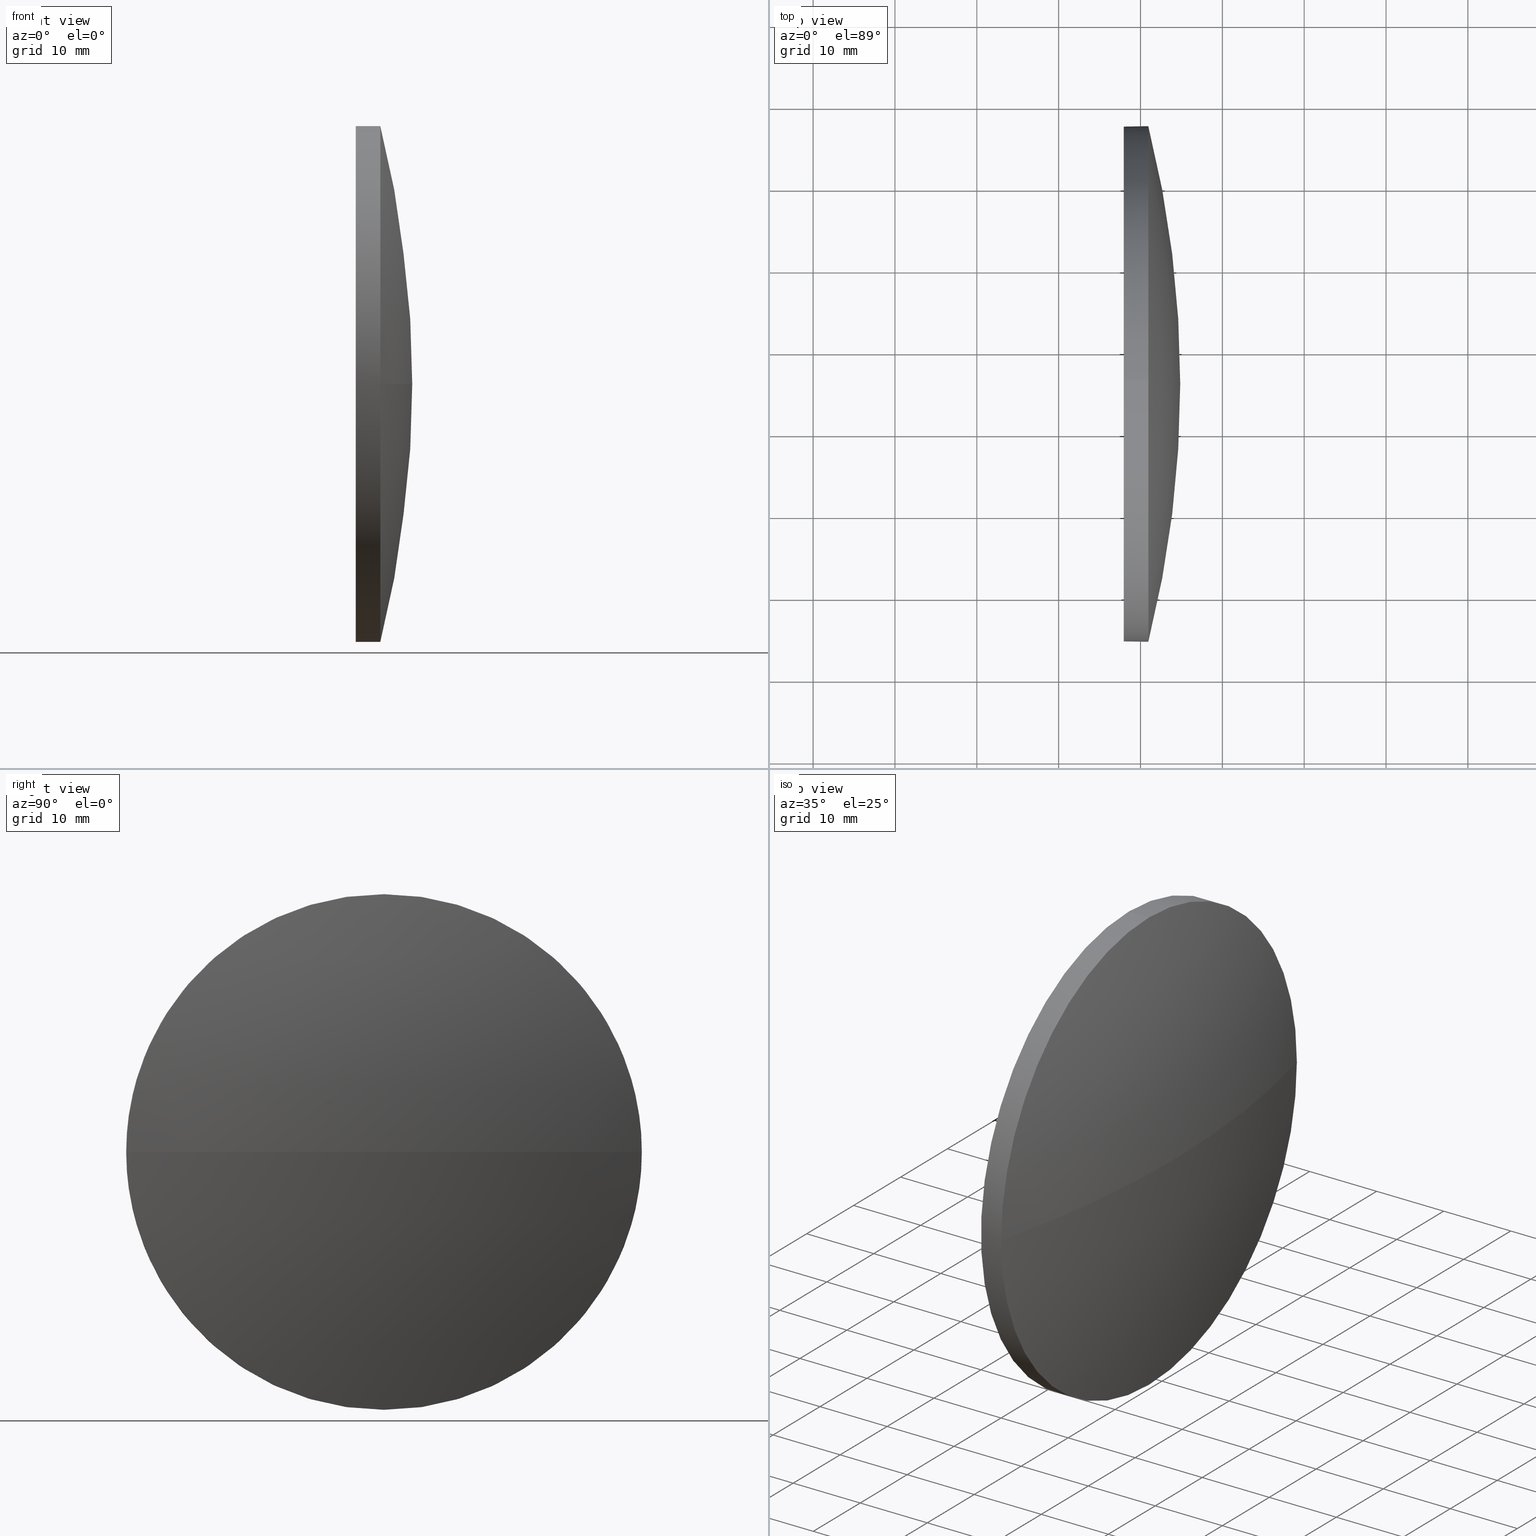
[diagram: canonical four-view strip — front | top / right | iso, engineering-drawing reading convention]
A machine part, canonical four-view strip (front | top / right | iso — engineering-drawing reading convention). The complete STEP part file that produces these views, byte-faithful:
ISO-10303-21;
HEADER;
FILE_DESCRIPTION (( 'STEP AP214' ),
    '1' );
FILE_NAME ('100161.STEP',
    '2019-05-16T08:38:45',
    ( '' ),
    ( '' ),
    'SwSTEP 2.0',
    'SolidWorks 2016',
    '' );
FILE_SCHEMA (( 'AUTOMOTIVE_DESIGN' ));
ENDSEC;

DATA;
#1 = PRODUCT_RELATED_PRODUCT_CATEGORY ( 'part', '', ( #149 ) ) ;
#2 = CIRCLE ( 'NONE', #133, 31.50000000000000000 ) ;
#3 = EDGE_LOOP ( 'NONE', ( #139, #184, #10, #58 ) ) ;
#4 = CARTESIAN_POINT ( 'NONE',  ( 519.9833742792245600, -64.13054328457161500, 31.50000000000000000 ) ) ;
#5 = EDGE_CURVE ( 'NONE', #148, #172, #102, .T. ) ;
#6 = CARTESIAN_POINT ( 'NONE',  ( 530.9541059465552700, -95.63054328457163000, -3.857637417314161900E-015 ) ) ;
#7 =( NAMED_UNIT ( * ) PLANE_ANGLE_UNIT ( ) SI_UNIT ( $, .RADIAN. ) );
#8 =( LENGTH_UNIT ( ) NAMED_UNIT ( * ) SI_UNIT ( .MILLI., .METRE. ) );
#9 = ORIENTED_EDGE ( 'NONE', *, *, #150, .T. ) ;
#10 = ORIENTED_EDGE ( 'NONE', *, *, #101, .F. ) ;
#11 = AXIS2_PLACEMENT_3D ( 'NONE', #167, #17, #153 ) ;
#12 = FACE_OUTER_BOUND ( 'NONE', #52, .T. ) ;
#13 = PRODUCT_CONTEXT ( 'NONE', #20, 'mechanical' ) ;
#14 = CIRCLE ( 'NONE', #36, 31.50000000000000000 ) ;
#15 = DIRECTION ( 'NONE',  ( -0.0000000000000000000, 0.0000000000000000000, -1.000000000000000000 ) ) ;
#16 = DIRECTION ( 'NONE',  ( -1.000000000000000000, -0.0000000000000000000, -0.0000000000000000000 ) ) ;
#17 = DIRECTION ( 'NONE',  ( -1.000000000000000000, -0.0000000000000000000, -0.0000000000000000000 ) ) ;
#18 = CARTESIAN_POINT ( 'NONE',  ( 534.8541059465552500, -64.13054328457161500, 0.0000000000000000000 ) ) ;
#19 = CARTESIAN_POINT ( 'NONE',  ( 405.6925674850170400, -64.13054328457163000, 0.0000000000000000000 ) ) ;
#20 = APPLICATION_CONTEXT ( 'automotive_design' ) ;
#21 = CARTESIAN_POINT ( 'NONE',  ( 0.0000000000000000000, 0.0000000000000000000, 0.0000000000000000000 ) ) ;
#22 = VERTEX_POINT ( 'NONE', #73 ) ;
#23 = ADVANCED_FACE ( 'NONE', ( #12 ), #174, .T. ) ;
#24 = PRESENTATION_LAYER_ASSIGNMENT (  '', '', ( #163 ) ) ;
#25 = VERTEX_POINT ( 'NONE', #60 ) ;
#26 = UNCERTAINTY_MEASURE_WITH_UNIT (LENGTH_MEASURE( 1.000000000000000100E-005 ), #169, 'distance_accuracy_value', 'NONE');
#27 = CARTESIAN_POINT ( 'NONE',  ( 530.9541059465552700, -64.13054328457161500, 0.0000000000000000000 ) ) ;
#28 = ORIENTED_EDGE ( 'NONE', *, *, #101, .T. ) ;
#29 =( NAMED_UNIT ( * ) PLANE_ANGLE_UNIT ( ) SI_UNIT ( $, .RADIAN. ) );
#30 = MECHANICAL_DESIGN_GEOMETRIC_PRESENTATION_REPRESENTATION (  '', ( #163 ), #129 ) ;
#31 = CARTESIAN_POINT ( 'NONE',  ( 530.9541059465552700, -64.13054328457161500, 0.0000000000000000000 ) ) ;
#32 = CIRCLE ( 'NONE', #41, 31.50000000000000000 ) ;
#33 =( NAMED_UNIT ( * ) PLANE_ANGLE_UNIT ( ) SI_UNIT ( $, .RADIAN. ) );
#34 = ORIENTED_EDGE ( 'NONE', *, *, #120, .T. ) ;
#35 = FACE_OUTER_BOUND ( 'NONE', #3, .T. ) ;
#36 = AXIS2_PLACEMENT_3D ( 'NONE', #27, #111, #76 ) ;
#37 = ADVANCED_FACE ( 'NONE', ( #98 ), #117, .T. ) ;
#38 = MECHANICAL_DESIGN_GEOMETRIC_PRESENTATION_REPRESENTATION (  '', ( #171 ), #178 ) ;
#39 = FACE_OUTER_BOUND ( 'NONE', #56, .T. ) ;
#40 = ORIENTED_EDGE ( 'NONE', *, *, #5, .T. ) ;
#41 = AXIS2_PLACEMENT_3D ( 'NONE', #110, #157, #158 ) ;
#42 = LINE ( 'NONE', #181, #105 ) ;
#43 = UNCERTAINTY_MEASURE_WITH_UNIT (LENGTH_MEASURE( 1.000000000000000100E-005 ), #127, 'distance_accuracy_value', 'NONE');
#44 = CARTESIAN_POINT ( 'NONE',  ( 530.9541059465552700, -64.13054328457161500, -31.50000000000000000 ) ) ;
#45 = ORIENTED_EDGE ( 'NONE', *, *, #72, .F. ) ;
#46 =( GEOMETRIC_REPRESENTATION_CONTEXT ( 3 ) GLOBAL_UNCERTAINTY_ASSIGNED_CONTEXT ( ( #26 ) ) GLOBAL_UNIT_ASSIGNED_CONTEXT ( ( #169, #7, #79 ) ) REPRESENTATION_CONTEXT ( 'NONE', 'WORKASPACE' ) );
#47 =( NAMED_UNIT ( * ) SI_UNIT ( $, .STERADIAN. ) SOLID_ANGLE_UNIT ( ) );
#48 = CARTESIAN_POINT ( 'NONE',  ( 405.6925674850170400, -64.13054328457163000, 0.0000000000000000000 ) ) ;
#49 = DIRECTION ( 'NONE',  ( -1.000000000000000000, -0.0000000000000000000, -0.0000000000000000000 ) ) ;
#50 = DIRECTION ( 'NONE',  ( -1.000000000000000000, -0.0000000000000000000, -0.0000000000000000000 ) ) ;
#51 = CIRCLE ( 'NONE', #57, 31.50000000000000000 ) ;
#52 = EDGE_LOOP ( 'NONE', ( #176, #115, #152, #125, #28 ) ) ;
#53 = AXIS2_PLACEMENT_3D ( 'NONE', #48, #62, #168 ) ;
#54 = COLOUR_RGB ( '',1.000000000000000000, 1.000000000000000000, 1.000000000000000000 ) ;
#55 = PRESENTATION_STYLE_ASSIGNMENT (( #89 ) ) ;
#56 = EDGE_LOOP ( 'NONE', ( #45, #136, #68, #88 ) ) ;
#57 = AXIS2_PLACEMENT_3D ( 'NONE', #114, #183, #64 ) ;
#58 = ORIENTED_EDGE ( 'NONE', *, *, #185, .F. ) ;
#59 = CARTESIAN_POINT ( 'NONE',  ( 530.9541059465552700, -64.13054328457161500, 31.50000000000000000 ) ) ;
#60 = CARTESIAN_POINT ( 'NONE',  ( 527.9541059465552700, -64.13054328457161500, -31.50000000000000000 ) ) ;
#61 = AXIS2_PLACEMENT_3D ( 'NONE', #31, #50, #161 ) ;
#62 = DIRECTION ( 'NONE',  ( 0.0000000000000000000, 1.224646799147353200E-016, -1.000000000000000000 ) ) ;
#63 = FILL_AREA_STYLE_COLOUR ( '', #54 ) ;
#64 = DIRECTION ( 'NONE',  ( 0.0000000000000000000, 0.0000000000000000000, 1.000000000000000000 ) ) ;
#65 = UNCERTAINTY_MEASURE_WITH_UNIT (LENGTH_MEASURE( 1.000000000000000100E-005 ), #8, 'distance_accuracy_value', 'NONE');
#66 = PRESENTATION_STYLE_ASSIGNMENT (( #170 ) ) ;
#67 = DIRECTION ( 'NONE',  ( -0.0000000000000000000, 0.0000000000000000000, -1.000000000000000000 ) ) ;
#68 = ORIENTED_EDGE ( 'NONE', *, *, #86, .F. ) ;
#69 = AXIS2_PLACEMENT_3D ( 'NONE', #155, #67, #131 ) ;
#70 = CIRCLE ( 'NONE', #108, 129.1615384615382100 ) ;
#71 = ORIENTED_EDGE ( 'NONE', *, *, #86, .T. ) ;
#72 = EDGE_CURVE ( 'NONE', #99, #22, #70, .T. ) ;
#73 = CARTESIAN_POINT ( 'NONE',  ( 530.9541059465552700, -32.63054328457162300, 0.0000000000000000000 ) ) ;
#74 = FILL_AREA_STYLE ('',( #63 ) ) ;
#75 = DIRECTION ( 'NONE',  ( -1.000000000000000000, -0.0000000000000000000, -0.0000000000000000000 ) ) ;
#76 = DIRECTION ( 'NONE',  ( 0.0000000000000000000, 0.0000000000000000000, 1.000000000000000000 ) ) ;
#77 = MANIFOLD_SOLID_BREP ( '��ת1', #175 ) ;
#78 = CARTESIAN_POINT ( 'NONE',  ( 527.9541059465552700, -64.13054328457161500, 0.0000000000000000000 ) ) ;
#79 =( NAMED_UNIT ( * ) SI_UNIT ( $, .STERADIAN. ) SOLID_ANGLE_UNIT ( ) );
#80 = SPHERICAL_SURFACE ( 'NONE', #141, 129.1615384615382100 ) ;
#81 = ORIENTED_EDGE ( 'NONE', *, *, #150, .F. ) ;
#82 = AXIS2_PLACEMENT_3D ( 'NONE', #78, #113, #112 ) ;
#83 = PRODUCT_DEFINITION ( 'δ֪', '', #159, #143 ) ;
#84 = SHAPE_DEFINITION_REPRESENTATION ( #164, #138 ) ;
#85 = EDGE_LOOP ( 'NONE', ( #186, #71, #119, #40, #81 ) ) ;
#86 = EDGE_CURVE ( 'NONE', #142, #107, #32, .T. ) ;
#87 = DIRECTION ( 'NONE',  ( 1.000000000000000000, 0.0000000000000000000, 0.0000000000000000000 ) ) ;
#88 = ORIENTED_EDGE ( 'NONE', *, *, #177, .F. ) ;
#89 = SURFACE_STYLE_USAGE ( .BOTH. , #180 ) ;
#90 = DIRECTION ( 'NONE',  ( -0.0000000000000000000, 0.0000000000000000000, 1.000000000000000000 ) ) ;
#91 = DIRECTION ( 'NONE',  ( -1.000000000000000000, -0.0000000000000000000, -0.0000000000000000000 ) ) ;
#92 = FACE_OUTER_BOUND ( 'NONE', #166, .T. ) ;
#93 = EDGE_CURVE ( 'NONE', #99, #107, #124, .T. ) ;
#94 = PRESENTATION_LAYER_ASSIGNMENT (  '', '', ( #171 ) ) ;
#95 = DIRECTION ( 'NONE',  ( 0.0000000000000000000, 0.0000000000000000000, 1.000000000000000000 ) ) ;
#96 = CARTESIAN_POINT ( 'NONE',  ( 530.9541059465552700, -64.13054328457161500, 0.0000000000000000000 ) ) ;
#97 = CARTESIAN_POINT ( 'NONE',  ( 527.9541059465552700, -64.13054328457161500, 31.50000000000000000 ) ) ;
#98 = FACE_OUTER_BOUND ( 'NONE', #85, .T. ) ;
#99 = VERTEX_POINT ( 'NONE', #18 ) ;
#100 = APPLICATION_PROTOCOL_DEFINITION ( 'draft international standard', 'automotive_design', 1998, #20 ) ;
#101 = EDGE_CURVE ( 'NONE', #148, #22, #14, .T. ) ;
#102 = LINE ( 'NONE', #4, #156 ) ;
#103 = CIRCLE ( 'NONE', #137, 31.50000000000000000 ) ;
#104 = EDGE_CURVE ( 'NONE', #142, #25, #42, .T. ) ;
#105 = VECTOR ( 'NONE', #75, 1000.000000000000000 ) ;
#106 = CARTESIAN_POINT ( 'NONE',  ( 527.9541059465552700, -64.13054328457161500, 0.0000000000000000000 ) ) ;
#107 = VERTEX_POINT ( 'NONE', #6 ) ;
#108 = AXIS2_PLACEMENT_3D ( 'NONE', #19, #90, #144 ) ;
#109 = DIRECTION ( 'NONE',  ( -1.000000000000000000, -0.0000000000000000000, -0.0000000000000000000 ) ) ;
#110 = CARTESIAN_POINT ( 'NONE',  ( 530.9541059465552700, -64.13054328457161500, 0.0000000000000000000 ) ) ;
#111 = DIRECTION ( 'NONE',  ( -1.000000000000000000, -0.0000000000000000000, -0.0000000000000000000 ) ) ;
#112 = DIRECTION ( 'NONE',  ( 0.0000000000000000000, 0.0000000000000000000, -1.000000000000000000 ) ) ;
#113 = DIRECTION ( 'NONE',  ( 1.000000000000000000, 0.0000000000000000000, 0.0000000000000000000 ) ) ;
#114 = CARTESIAN_POINT ( 'NONE',  ( 527.9541059465552700, -64.13054328457161500, 0.0000000000000000000 ) ) ;
#115 = ORIENTED_EDGE ( 'NONE', *, *, #104, .T. ) ;
#116 = AXIS2_PLACEMENT_3D ( 'NONE', #128, #91, #95 ) ;
#117 = CYLINDRICAL_SURFACE ( 'NONE', #116, 31.50000000000000000 ) ;
#118 = CIRCLE ( 'NONE', #61, 31.50000000000000000 ) ;
#119 = ORIENTED_EDGE ( 'NONE', *, *, #185, .T. ) ;
#120 = EDGE_CURVE ( 'NONE', #172, #25, #2, .T. ) ;
#121 = COLOUR_RGB ( '',1.000000000000000000, 1.000000000000000000, 1.000000000000000000 ) ;
#122 = DIRECTION ( 'NONE',  ( 0.0000000000000000000, 0.0000000000000000000, 1.000000000000000000 ) ) ;
#123 = APPLICATION_CONTEXT ( 'automotive_design' ) ;
#124 = CIRCLE ( 'NONE', #53, 129.1615384615382100 ) ;
#125 = ORIENTED_EDGE ( 'NONE', *, *, #5, .F. ) ;
#126 = DIRECTION ( 'NONE',  ( 0.0000000000000000000, 0.0000000000000000000, 1.000000000000000000 ) ) ;
#127 =( LENGTH_UNIT ( ) NAMED_UNIT ( * ) SI_UNIT ( .MILLI., .METRE. ) );
#128 = CARTESIAN_POINT ( 'NONE',  ( 519.9833742792245600, -64.13054328457161500, 0.0000000000000000000 ) ) ;
#129 =( GEOMETRIC_REPRESENTATION_CONTEXT ( 3 ) GLOBAL_UNCERTAINTY_ASSIGNED_CONTEXT ( ( #43 ) ) GLOBAL_UNIT_ASSIGNED_CONTEXT ( ( #127, #29, #47 ) ) REPRESENTATION_CONTEXT ( 'NONE', 'WORKASPACE' ) );
#130 = SURFACE_STYLE_FILL_AREA ( #74 ) ;
#131 = DIRECTION ( 'NONE',  ( 0.0000000000000000000, 1.000000000000000000, 0.0000000000000000000 ) ) ;
#132 = FILL_AREA_STYLE_COLOUR ( '', #121 ) ;
#133 = AXIS2_PLACEMENT_3D ( 'NONE', #106, #16, #126 ) ;
#134 = ADVANCED_FACE ( 'NONE', ( #35 ), #80, .T. ) ;
#135 = SURFACE_STYLE_FILL_AREA ( #160 ) ;
#136 = ORIENTED_EDGE ( 'NONE', *, *, #93, .T. ) ;
#137 = AXIS2_PLACEMENT_3D ( 'NONE', #96, #49, #173 ) ;
#138 = ADVANCED_BREP_SHAPE_REPRESENTATION ( '100161', ( #77, #146 ), #46 ) ;
#139 = ORIENTED_EDGE ( 'NONE', *, *, #93, .F. ) ;
#140 = DIRECTION ( 'NONE',  ( 0.0000000000000000000, 1.000000000000000000, 0.0000000000000000000 ) ) ;
#141 = AXIS2_PLACEMENT_3D ( 'NONE', #179, #15, #140 ) ;
#142 = VERTEX_POINT ( 'NONE', #44 ) ;
#143 = PRODUCT_DEFINITION_CONTEXT ( 'detailed design', #123, 'design' ) ;
#144 = DIRECTION ( 'NONE',  ( 1.000000000000000000, 0.0000000000000000000, 0.0000000000000000000 ) ) ;
#145 = SURFACE_SIDE_STYLE ('',( #135 ) ) ;
#146 = AXIS2_PLACEMENT_3D ( 'NONE', #21, #122, #87 ) ;
#147 =( NAMED_UNIT ( * ) SI_UNIT ( $, .STERADIAN. ) SOLID_ANGLE_UNIT ( ) );
#148 = VERTEX_POINT ( 'NONE', #59 ) ;
#149 = PRODUCT ( '100161', '100161', '', ( #13 ) ) ;
#150 = EDGE_CURVE ( 'NONE', #25, #172, #51, .T. ) ;
#151 = ADVANCED_FACE ( 'NONE', ( #39 ), #162, .T. ) ;
#152 = ORIENTED_EDGE ( 'NONE', *, *, #120, .F. ) ;
#153 = DIRECTION ( 'NONE',  ( 0.0000000000000000000, 0.0000000000000000000, 1.000000000000000000 ) ) ;
#154 = APPLICATION_PROTOCOL_DEFINITION ( 'draft international standard', 'automotive_design', 1998, #123 ) ;
#155 = CARTESIAN_POINT ( 'NONE',  ( 405.6925674850170400, -64.13054328457163000, 0.0000000000000000000 ) ) ;
#156 = VECTOR ( 'NONE', #109, 1000.000000000000000 ) ;
#157 = DIRECTION ( 'NONE',  ( -1.000000000000000000, -0.0000000000000000000, -0.0000000000000000000 ) ) ;
#158 = DIRECTION ( 'NONE',  ( 0.0000000000000000000, 0.0000000000000000000, 1.000000000000000000 ) ) ;
#159 = PRODUCT_DEFINITION_FORMATION_WITH_SPECIFIED_SOURCE ( '�κ�', '', #149, .NOT_KNOWN. ) ;
#160 = FILL_AREA_STYLE ('',( #132 ) ) ;
#161 = DIRECTION ( 'NONE',  ( 0.0000000000000000000, 0.0000000000000000000, 1.000000000000000000 ) ) ;
#162 = SPHERICAL_SURFACE ( 'NONE', #69, 129.1615384615382100 ) ;
#163 = STYLED_ITEM ( 'NONE', ( #55 ), #77 ) ;
#164 = PRODUCT_DEFINITION_SHAPE ( 'NONE', 'NONE',  #83 ) ;
#165 = ADVANCED_FACE ( 'NONE', ( #92 ), #182, .F. ) ;
#166 = EDGE_LOOP ( 'NONE', ( #34, #9 ) ) ;
#167 = CARTESIAN_POINT ( 'NONE',  ( 519.9833742792245600, -64.13054328457161500, 0.0000000000000000000 ) ) ;
#168 = DIRECTION ( 'NONE',  ( 0.0000000000000000000, 1.000000000000000000, 1.224646799147353000E-016 ) ) ;
#169 =( LENGTH_UNIT ( ) NAMED_UNIT ( * ) SI_UNIT ( .MILLI., .METRE. ) );
#170 = SURFACE_STYLE_USAGE ( .BOTH. , #145 ) ;
#171 = STYLED_ITEM ( 'NONE', ( #66 ), #138 ) ;
#172 = VERTEX_POINT ( 'NONE', #97 ) ;
#173 = DIRECTION ( 'NONE',  ( 0.0000000000000000000, 0.0000000000000000000, 1.000000000000000000 ) ) ;
#174 = CYLINDRICAL_SURFACE ( 'NONE', #11, 31.50000000000000000 ) ;
#175 = CLOSED_SHELL ( 'NONE', ( #23, #151, #134, #37, #165 ) ) ;
#176 = ORIENTED_EDGE ( 'NONE', *, *, #177, .T. ) ;
#177 = EDGE_CURVE ( 'NONE', #22, #142, #118, .T. ) ;
#178 =( GEOMETRIC_REPRESENTATION_CONTEXT ( 3 ) GLOBAL_UNCERTAINTY_ASSIGNED_CONTEXT ( ( #65 ) ) GLOBAL_UNIT_ASSIGNED_CONTEXT ( ( #8, #33, #147 ) ) REPRESENTATION_CONTEXT ( 'NONE', 'WORKASPACE' ) );
#179 = CARTESIAN_POINT ( 'NONE',  ( 405.6925674850170400, -64.13054328457163000, 0.0000000000000000000 ) ) ;
#180 = SURFACE_SIDE_STYLE ('',( #130 ) ) ;
#181 = CARTESIAN_POINT ( 'NONE',  ( 519.9833742792245600, -64.13054328457161500, -31.50000000000000000 ) ) ;
#182 = PLANE ( 'NONE',  #82 ) ;
#183 = DIRECTION ( 'NONE',  ( -1.000000000000000000, -0.0000000000000000000, -0.0000000000000000000 ) ) ;
#184 = ORIENTED_EDGE ( 'NONE', *, *, #72, .T. ) ;
#185 = EDGE_CURVE ( 'NONE', #107, #148, #103, .T. ) ;
#186 = ORIENTED_EDGE ( 'NONE', *, *, #104, .F. ) ;
ENDSEC;
END-ISO-10303-21;
